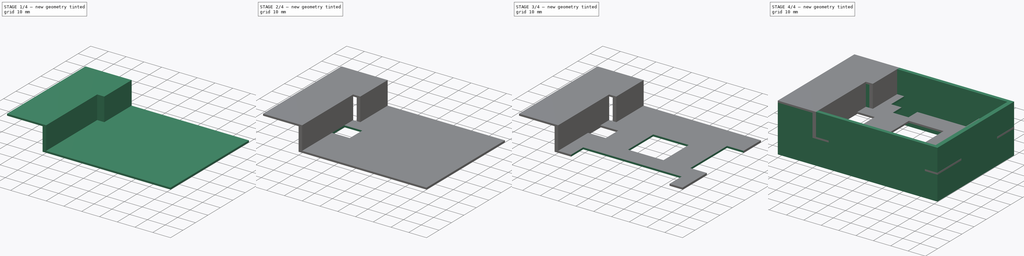
[diagram: build sequence overview — one tinted view per stage of 4, left to right]
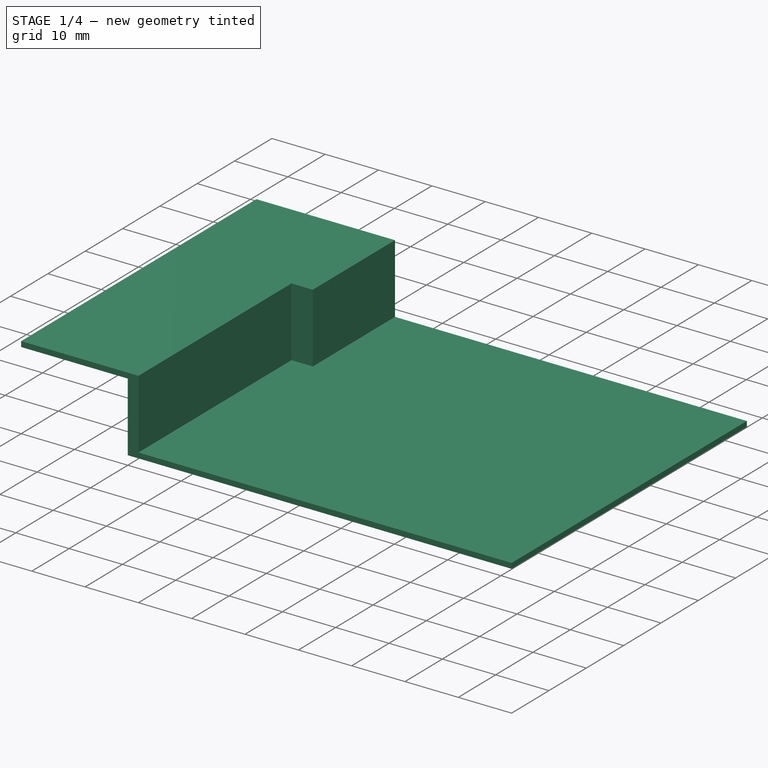
[diagram: stage 1 of 4 — iso view after this stage's code; geometry added in this stage tinted green]
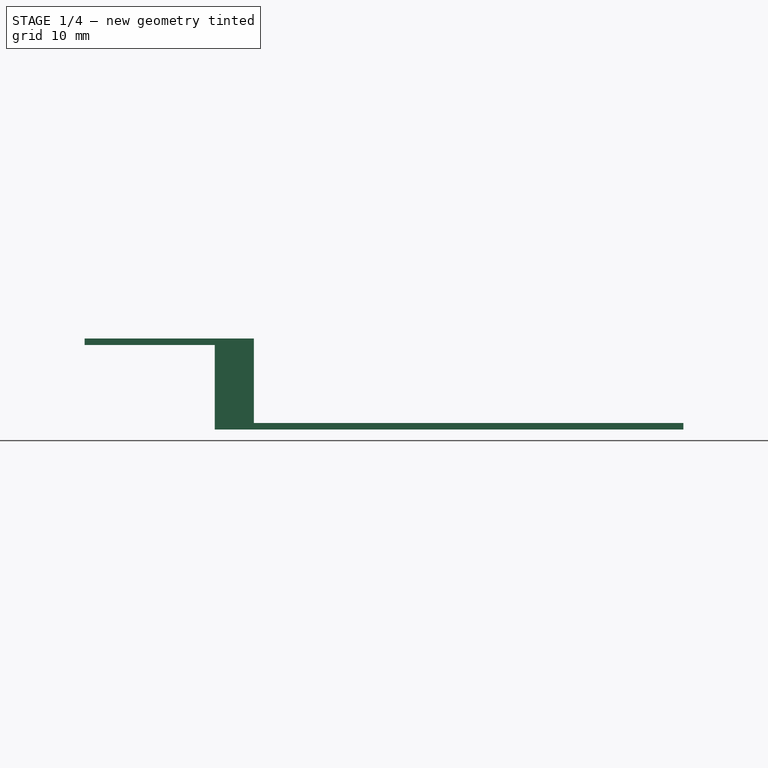
[diagram: stage 1 of 4 — front view after this stage's code; geometry added in this stage tinted green]
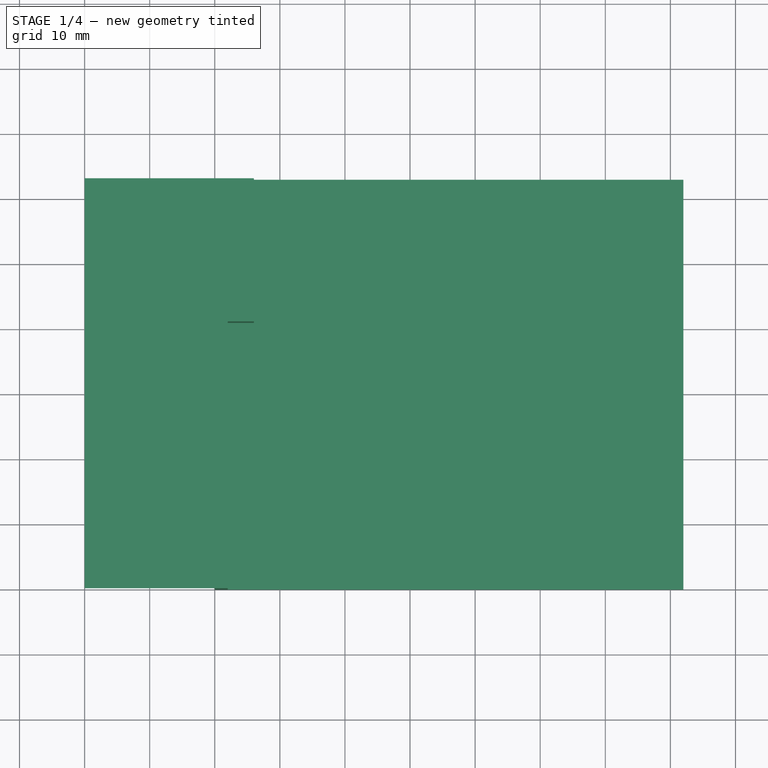
[diagram: stage 1 of 4 — top view after this stage's code; geometry added in this stage tinted green]
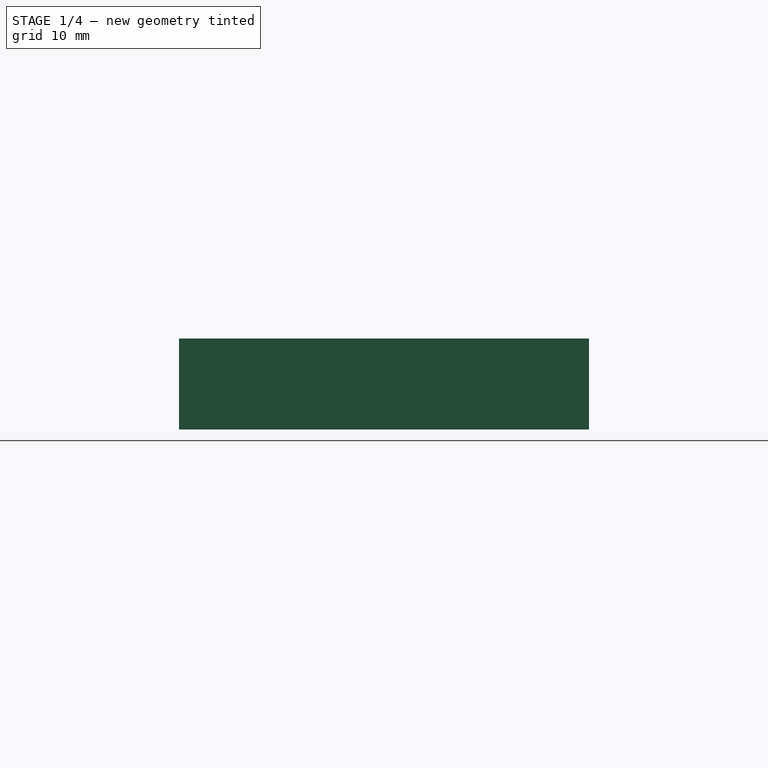
[diagram: stage 1 of 4 — right view after this stage's code; geometry added in this stage tinted green]
FCSTD DOCUMENT  (FreeCAD 0.17RUnknown)
Label: raspberrypi
License: All rights reserved
LicenseURL: http://en.wikipedia.org/wiki/All_rights_reserved
objects: Sketcher::SketchObject×9, PartDesign::Pocket×6, PartDesign::Plane×4, PartDesign::Pad×3, PartDesign::Body×1
note: 32 computed .brp shape members not serialized (recipe doc carries the construction recipe); baked Part::Feature solids carry a one-line shape summary decoded from their .brp

FEATURE [Sketcher::SketchObject] Sketch
  Placement = pos=(0,0,0) rot=(1,0,0;1.5708rad)
  sketch-geometry (11):
    g0: LineSegment StartX=0 StartY=22 StartZ=0 EndX=20 EndY=22 EndZ=0
    g1: LineSegment StartX=20 StartY=22 StartZ=0 EndX=20 EndY=9 EndZ=0
    g2: LineSegment StartX=20 StartY=9 StartZ=0 EndX=92 EndY=9 EndZ=0
    g3: LineSegment StartX=0 StartY=22 StartZ=0 EndX=0 EndY=23 EndZ=0
    g4: LineSegment StartX=0 StartY=23 StartZ=0 EndX=22 EndY=23 EndZ=0
    g5: LineSegment StartX=22 StartY=23 StartZ=0 EndX=22 EndY=10 EndZ=0
    g6: LineSegment StartX=22 StartY=10 StartZ=0 EndX=92 EndY=10 EndZ=0
    g7: LineSegment StartX=92 StartY=10 StartZ=0 EndX=92 EndY=9 EndZ=0
    g8: LineSegment [constr] StartX=20 StartY=9 StartZ=0 EndX=20 EndY=0 EndZ=0
    g9: LineSegment [constr] StartX=22 StartY=10 StartZ=0 EndX=22 EndY=0 EndZ=0
    g10: LineSegment [constr] StartX=92 StartY=9 StartZ=0 EndX=92 EndY=0 EndZ=0
  constraints (33):
    c: Coincident(g0,g1)
    c: Coincident(g1,g2)
    c: Coincident(g0,g3)
    c: Coincident(g3,g4)
    c: Coincident(g4,g5)
    c: Coincident(g5,g6)
    c: Coincident(g6,g7)
    c: Coincident(g7,g2)
    c: Distance(g3,g0) = 1
    c: Parallel(g4,g0)
    c: Parallel(g1,g5)
    c: Parallel(g6,g2)
    c: Horizontal(g0)
    c: Horizontal(g2)
    c: Vertical(g1)
    c: Coincident(g8,g1)
    c: PointOnObject(g8,g-1)
    c: Vertical(g8)
    c: Coincident(g9,g5)
    c: PointOnObject(g9,g-1)
    c: Vertical(g9)
    c: Distance(g6,g2) = 1
    c: Parallel(g3,g5)
    c: Parallel(g7,g1)
    c: Distance(g4,g5) = 13
    c: Coincident(g10,g2)
    c: PointOnObject(g10,g-1)
    c: Vertical(g10)
    c: Distance(g8,g9) = 2
    c: PointOnObject(g0,g-2)
    c: Distance(g-1,g0) = 22
    c: Distance(g0,g0) = 20
    c: Distance(g9,g10) = 70
FEATURE [PartDesign::Pad] Pad
  Length = 63
  Length2 = 100
  Placement = pos=(0,0,0) rot=(1,0,0;1.5708rad)
  Profile = -> Sketch
  Reversed = true
  Type = 0
FEATURE [PartDesign::Plane] DatumPlane
  MapMode = 5
  Placement = pos=(22,0,0) rot=(0.707107,0,0.707107;3.14159rad)
  Support = -> [Pad]
FEATURE [Sketcher::SketchObject] Sketch001
  ExternalGeometry = -> [Pad]
  MapMode = 5
  Placement = pos=(22,0,0) rot=(0.707107,0,0.707107;3.14159rad)
  Support = -> [DatumPlane]
  sketch-geometry (3):
    g0: LineSegment StartX=23 StartY=-63 StartZ=0 EndX=10 EndY=-63 EndZ=0
    g1: LineSegment StartX=10 StartY=-39 StartZ=0 EndX=23 EndY=-39 EndZ=0
    g2: LineSegment StartX=23 StartY=-39 StartZ=0 EndX=23 EndY=-63 EndZ=0
  constraints (8):
    c: Coincident(g1,g2)
    c: Coincident(g2,g0)
    c: Horizontal(g0)
    c: Horizontal(g1)
    c: Vertical(g2)
    c: Coincident(g0,g-4)
    c: PointOnObject(g1,g-5)
    c: Distance(g2) = 24
FEATURE [PartDesign::Pad] Pad001
  BaseFeature = -> Pad
  Length = 4
  Length2 = 100
  Placement = pos=(0,0,0) rot=(1,0,0;1.5708rad)
  Profile = -> Sketch001
  Type = 0
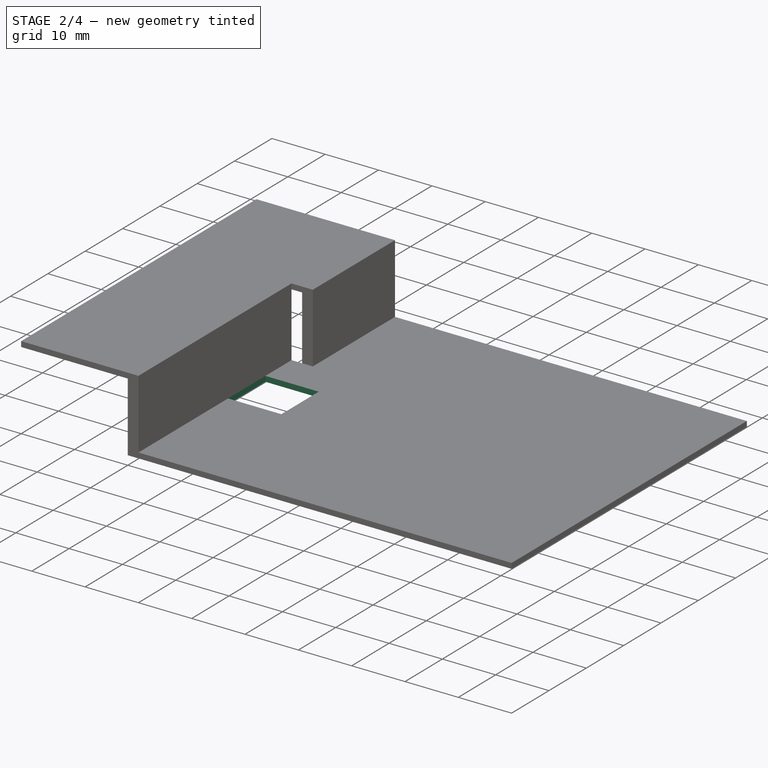
[diagram: stage 2 of 4 — iso view after this stage's code; geometry added in this stage tinted green]
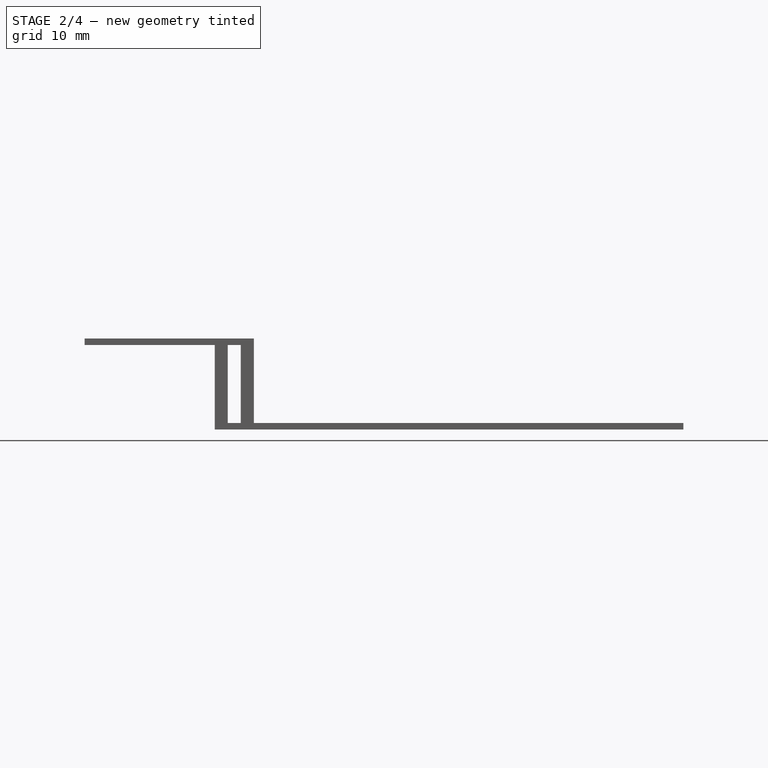
[diagram: stage 2 of 4 — front view after this stage's code; geometry added in this stage tinted green]
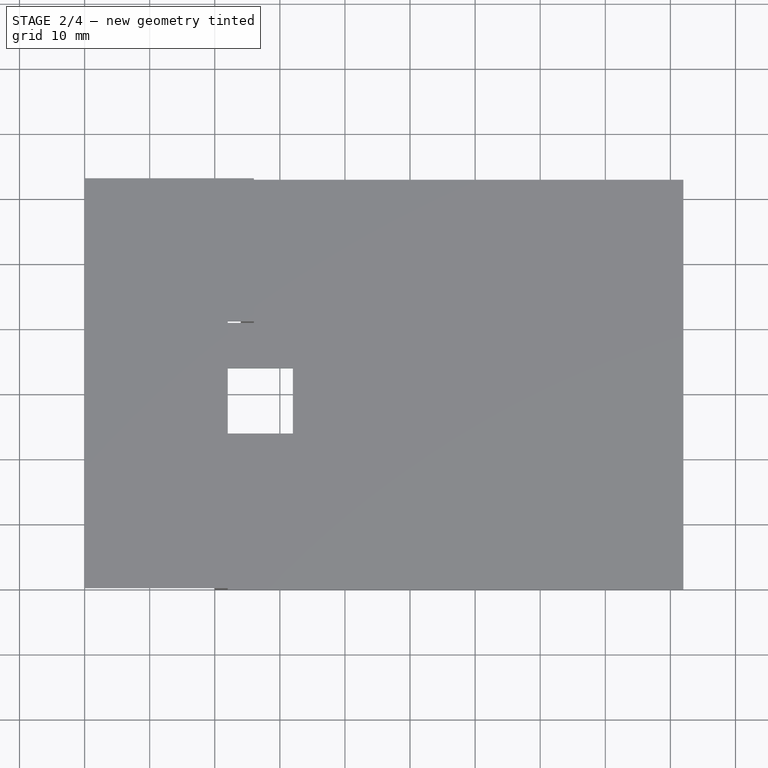
[diagram: stage 2 of 4 — top view after this stage's code; geometry added in this stage tinted green]
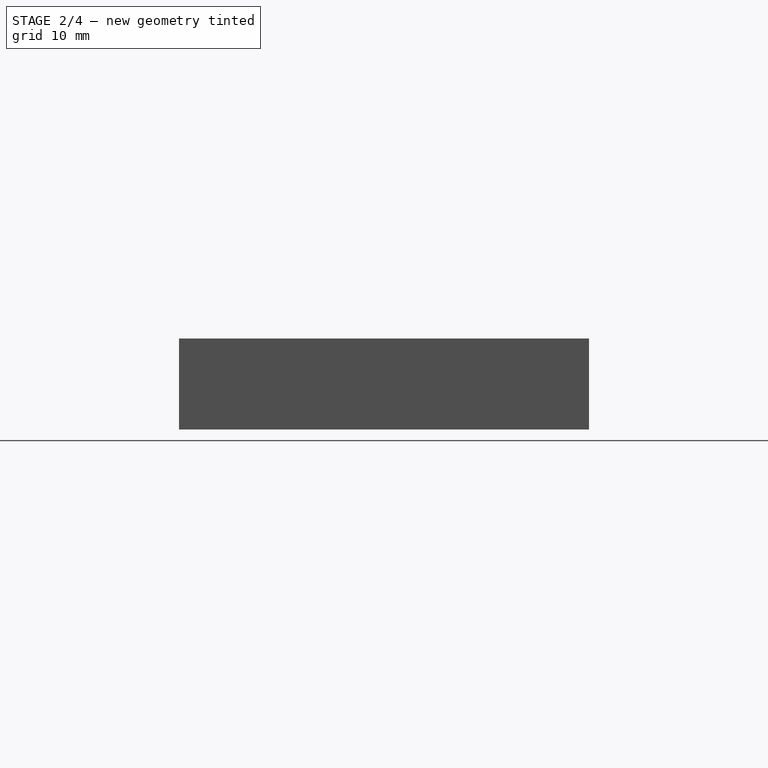
[diagram: stage 2 of 4 — right view after this stage's code; geometry added in this stage tinted green]
FEATURE [PartDesign::Plane] DatumPlane001
  MapMode = 5
  Placement = pos=(20,0,0) rot=(0.707107,0,-0.707107;3.14159rad)
  Support = -> [Pad001]
FEATURE [Sketcher::SketchObject] Sketch002
  ExternalGeometry = -> [Pad001]
  MapMode = 5
  Placement = pos=(20,0,0) rot=(0.707107,0,-0.707107;3.14159rad)
  Support = -> [DatumPlane001]
  sketch-geometry (4):
    g0: LineSegment StartX=-9 StartY=-63 StartZ=0 EndX=-22 EndY=-63 EndZ=0
    g1: LineSegment StartX=-22 StartY=-63 StartZ=0 EndX=-22 EndY=-41 EndZ=0
    g2: LineSegment StartX=-22 StartY=-41 StartZ=0 EndX=-9 EndY=-41 EndZ=0
    g3: LineSegment StartX=-9 StartY=-41 StartZ=0 EndX=-9 EndY=-63 EndZ=0
  constraints (11):
    c: Coincident(g0,g1)
    c: Coincident(g1,g2)
    c: Coincident(g2,g3)
    c: Coincident(g3,g0)
    c: Horizontal(g0)
    c: Horizontal(g2)
    c: Vertical(g1)
    c: Vertical(g3)
    c: Coincident(g0,g-6)
    c: PointOnObject(g1,g-5)
    c: Distance(g3) = 22
FEATURE [PartDesign::Pocket] Pocket
  BaseFeature = -> Pad001
  Length = 4
  Length2 = 100
  Placement = pos=(0,0,0) rot=(1,0,0;1.5708rad)
  Profile = -> Sketch002
  Type = 0
FEATURE [PartDesign::Plane] DatumPlane002
  MapMode = 5
  Placement = pos=(0,0,10) rot=(0,0,1;3.14159rad)
  Support = -> [Pocket]
FEATURE [Sketcher::SketchObject] Sketch003  label="hole1"
  ExternalGeometry = -> [Pocket]
  MapMode = 5
  Placement = pos=(0,0,10) rot=(0,0,1;3.14159rad)
  Support = -> [DatumPlane002]
  sketch-geometry (5):
    g0: LineSegment StartX=-32 StartY=-24 StartZ=0 EndX=-22 EndY=-24 EndZ=0
    g1: LineSegment StartX=-22 StartY=-24 StartZ=0 EndX=-22 EndY=-34 EndZ=0
    g2: LineSegment StartX=-22 StartY=-34 StartZ=0 EndX=-32 EndY=-34 EndZ=0
    g3: LineSegment StartX=-32 StartY=-34 StartZ=0 EndX=-32 EndY=-24 EndZ=0
    g4: LineSegment [constr] StartX=-32 StartY=-34 StartZ=0 EndX=-32 EndY=-41 EndZ=0
  constraints (15):
    c: Coincident(g0,g1)
    c: Coincident(g1,g2)
    c: Coincident(g2,g3)
    c: Coincident(g3,g0)
    c: Horizontal(g0)
    c: Horizontal(g2)
    c: Vertical(g1)
    c: Vertical(g3)
    c: Equal(g0,g3)
    c: Coincident(g4,g2)
    c: PointOnObject(g4,g-7)
    c: Parallel(g4,g3)
    c: PointOnObject(g0,g-8)
    c: Distance(g0) = 10
    c: Distance(g4) = 7
FEATURE [Sketcher::SketchObject] Sketch004  label="hole2"
  MapMode = 5
  Placement = pos=(0,0,10) rot=(0,0,1;3.14159rad)
  Support = -> [DatumPlane002]
  sketch-geometry (4):
    g0: LineSegment StartX=-84.6832 StartY=0 StartZ=0 EndX=-29.3019 EndY=0 EndZ=0
    g1: LineSegment StartX=-29.3019 StartY=0 StartZ=0 EndX=-29.3019 EndY=-9.71902 EndZ=0
    g2: LineSegment StartX=-29.3019 StartY=-9.71902 StartZ=0 EndX=-84.6832 EndY=-9.71902 EndZ=0
    g3: LineSegment StartX=-84.6832 StartY=-9.71902 StartZ=0 EndX=-84.6832 EndY=0 EndZ=0
  constraints (9):
    c: Coincident(g0,g1)
    c: Coincident(g1,g2)
    c: Coincident(g2,g3)
    c: Coincident(g3,g0)
    c: Horizontal(g0)
    c: Horizontal(g2)
    c: Vertical(g1)
    c: Vertical(g3)
    c: PointOnObject(g0,g-1)
FEATURE [PartDesign::Pocket] Pocket001
  BaseFeature = -> Pocket
  Length = 5
  Length2 = 100
  Placement = pos=(0,0,0) rot=(1,0,0;1.5708rad)
  Profile = -> Sketch003
  Type = 0
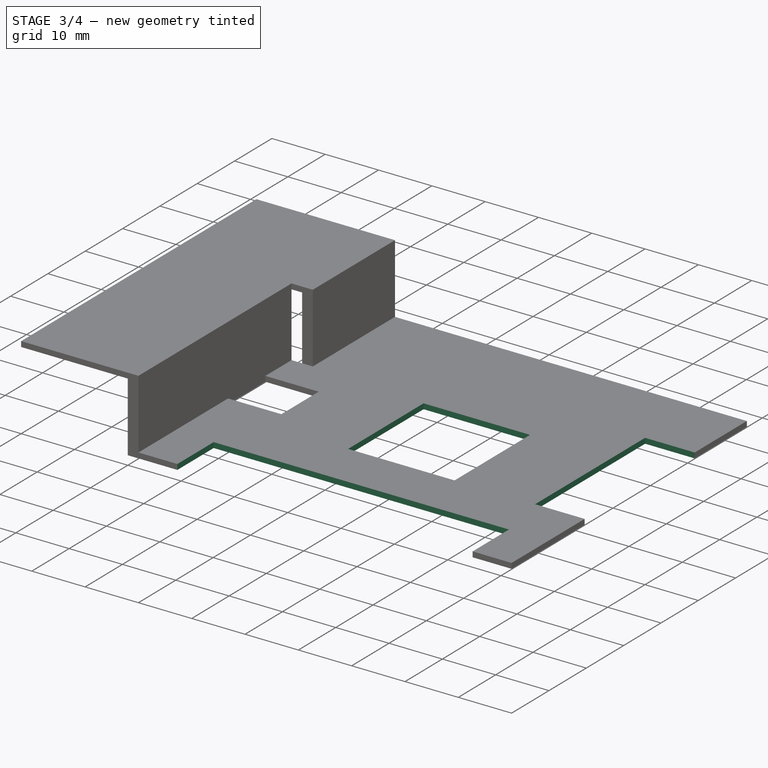
[diagram: stage 3 of 4 — iso view after this stage's code; geometry added in this stage tinted green]
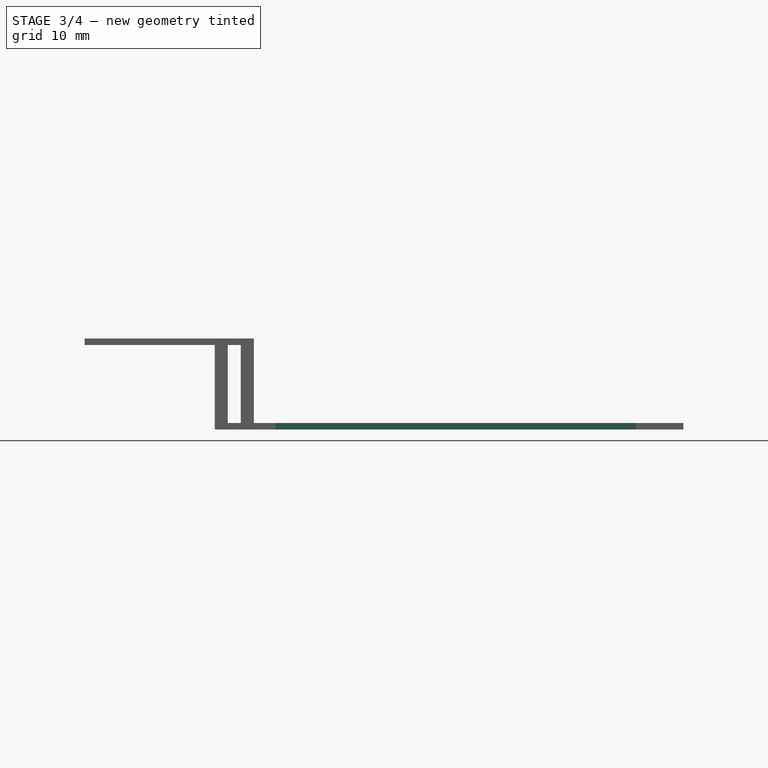
[diagram: stage 3 of 4 — front view after this stage's code; geometry added in this stage tinted green]
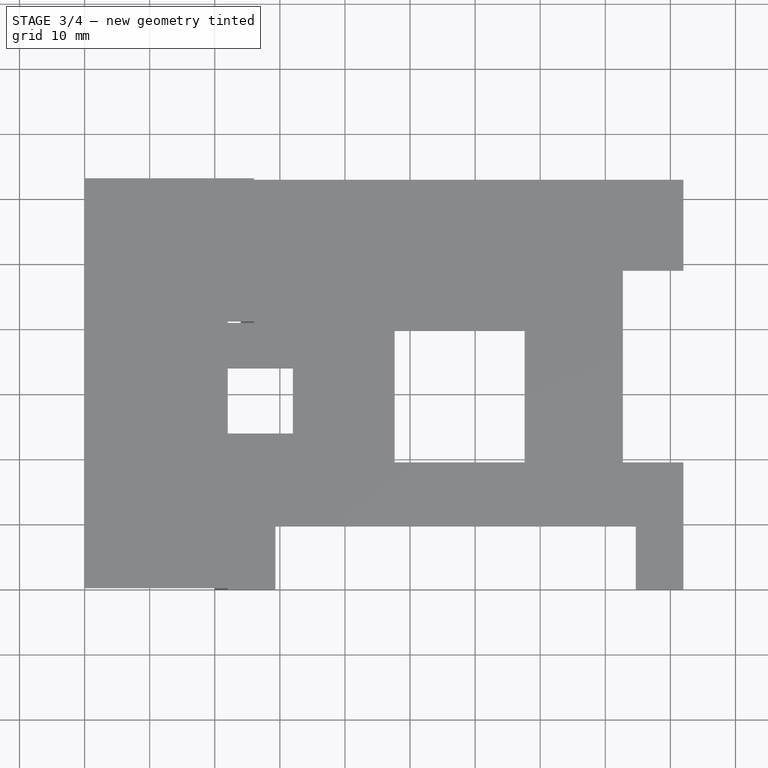
[diagram: stage 3 of 4 — top view after this stage's code; geometry added in this stage tinted green]
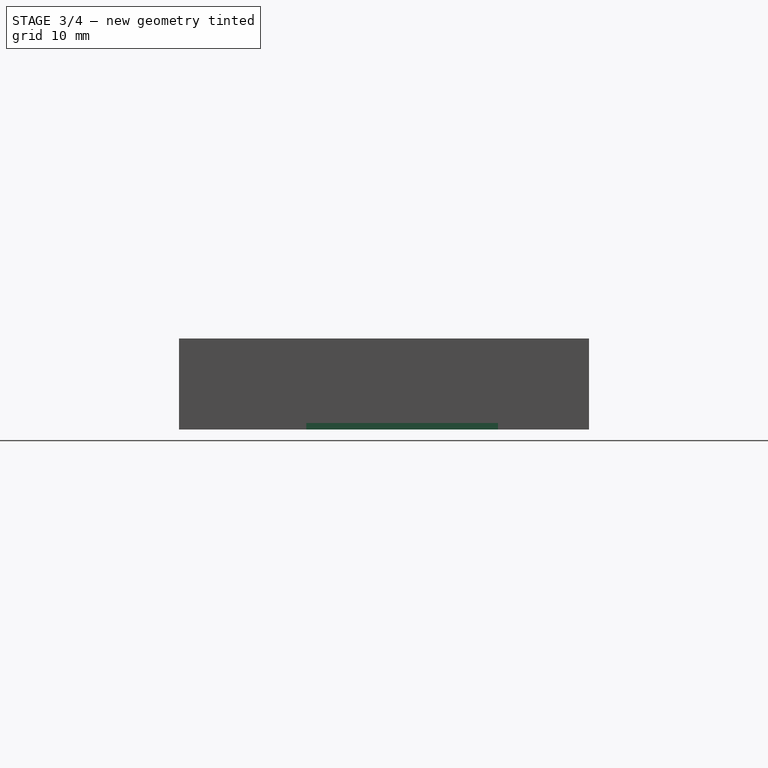
[diagram: stage 3 of 4 — right view after this stage's code; geometry added in this stage tinted green]
FEATURE [PartDesign::Pocket] Pocket002
  BaseFeature = -> Pocket001
  Length = 5
  Length2 = 100
  Placement = pos=(0,0,0) rot=(1,0,0;1.5708rad)
  Profile = -> Sketch004
  Type = 0
FEATURE [Sketcher::SketchObject] Sketch005
  MapMode = 5
  Placement = pos=(0,0,10) rot=(0,0,1;3.14159rad)
  Support = -> [DatumPlane002]
  sketch-geometry (4):
    g0: LineSegment StartX=-67.6064 StartY=-19.5549 StartZ=0 EndX=-47.6368 EndY=-19.5549 EndZ=0
    g1: LineSegment StartX=-47.6368 StartY=-19.5549 StartZ=0 EndX=-47.6368 EndY=-39.768 EndZ=0
    g2: LineSegment StartX=-47.6368 StartY=-39.768 StartZ=0 EndX=-67.6064 EndY=-39.768 EndZ=0
    g3: LineSegment StartX=-67.6064 StartY=-39.768 StartZ=0 EndX=-67.6064 EndY=-19.5549 EndZ=0
  constraints (8):
    c: Coincident(g0,g1)
    c: Coincident(g1,g2)
    c: Coincident(g2,g3)
    c: Coincident(g3,g0)
    c: Horizontal(g0)
    c: Horizontal(g2)
    c: Vertical(g1)
    c: Vertical(g3)
FEATURE [PartDesign::Pocket] Pocket003
  BaseFeature = -> Pocket002
  Length = 5
  Length2 = 100
  Placement = pos=(0,0,0) rot=(1,0,0;1.5708rad)
  Profile = -> Sketch005
  Type = 0
FEATURE [Sketcher::SketchObject] Sketch006
  MapMode = 5
  Placement = pos=(0,0,10) rot=(0,0,1;3.14159rad)
  Support = -> [DatumPlane002]
  sketch-geometry (4):
    g0: LineSegment StartX=-82.7054 StartY=-19.5549 StartZ=0 EndX=-94.6384 EndY=-19.5549 EndZ=0
    g1: LineSegment StartX=-94.6384 StartY=-19.5549 StartZ=0 EndX=-94.6384 EndY=-49.0222 EndZ=0
    g2: LineSegment StartX=-94.6384 StartY=-49.0222 StartZ=0 EndX=-82.7054 EndY=-49.0222 EndZ=0
    g3: LineSegment StartX=-82.7054 StartY=-49.0222 StartZ=0 EndX=-82.7054 EndY=-19.5549 EndZ=0
  constraints (8):
    c: Coincident(g0,g1)
    c: Coincident(g1,g2)
    c: Coincident(g2,g3)
    c: Coincident(g3,g0)
    c: Horizontal(g0)
    c: Horizontal(g2)
    c: Vertical(g1)
    c: Vertical(g3)
FEATURE [PartDesign::Pocket] Pocket004
  BaseFeature = -> Pocket003
  Length = 5
  Length2 = 100
  Placement = pos=(0,0,0) rot=(1,0,0;1.5708rad)
  Profile = -> Sketch006
  Type = 0
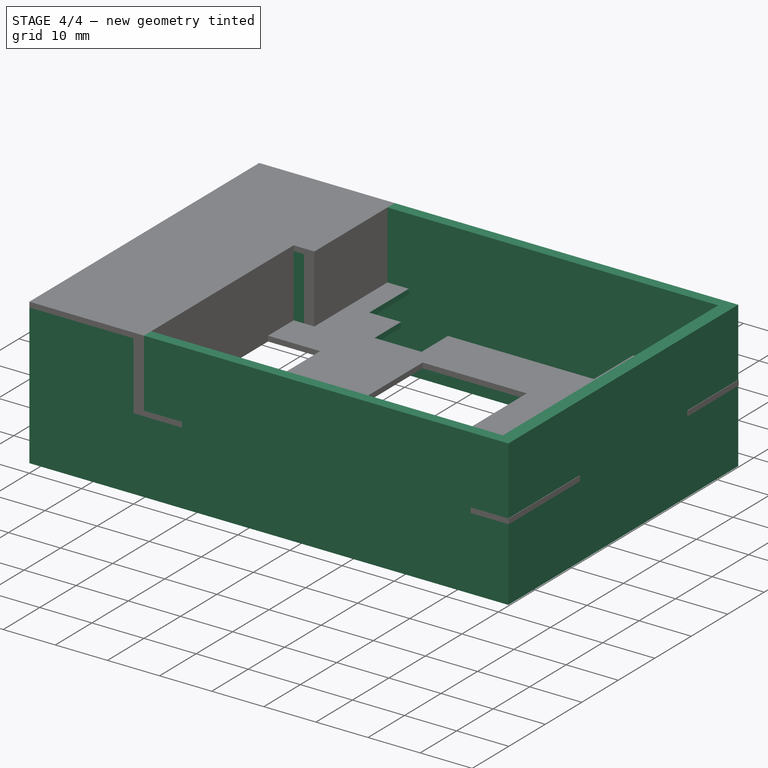
[diagram: stage 4 of 4 — iso view after this stage's code; geometry added in this stage tinted green]
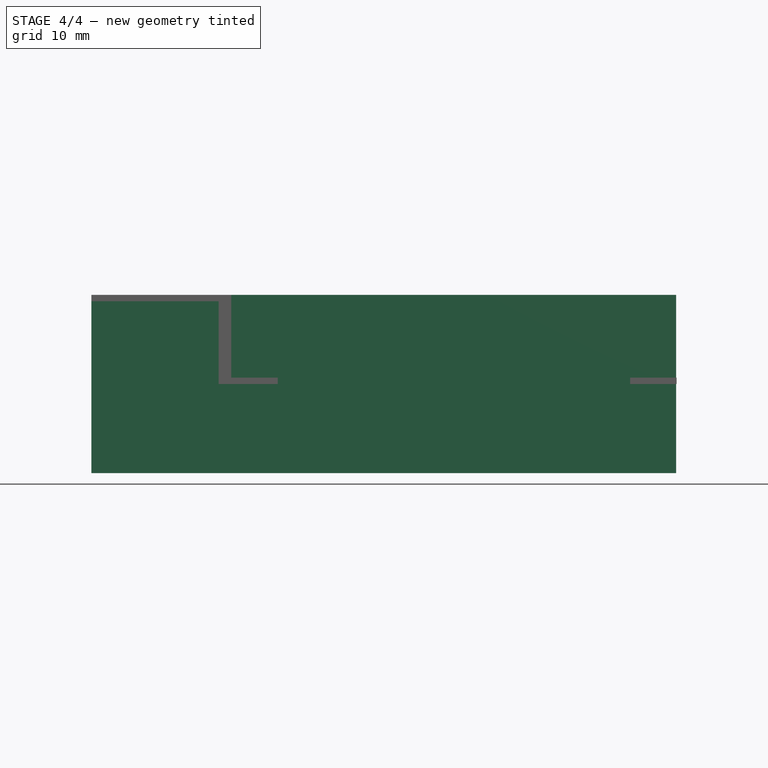
[diagram: stage 4 of 4 — front view after this stage's code; geometry added in this stage tinted green]
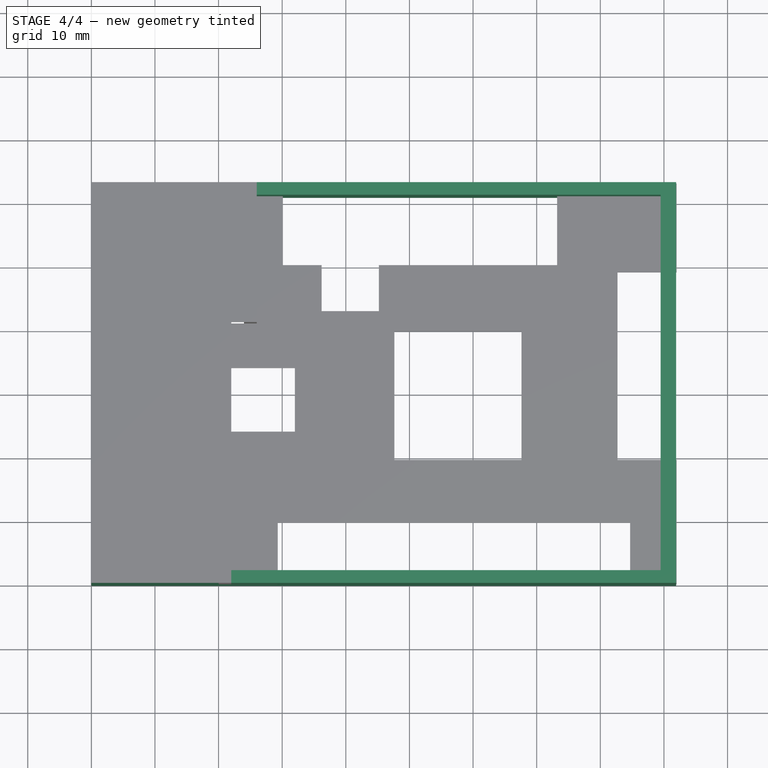
[diagram: stage 4 of 4 — top view after this stage's code; geometry added in this stage tinted green]
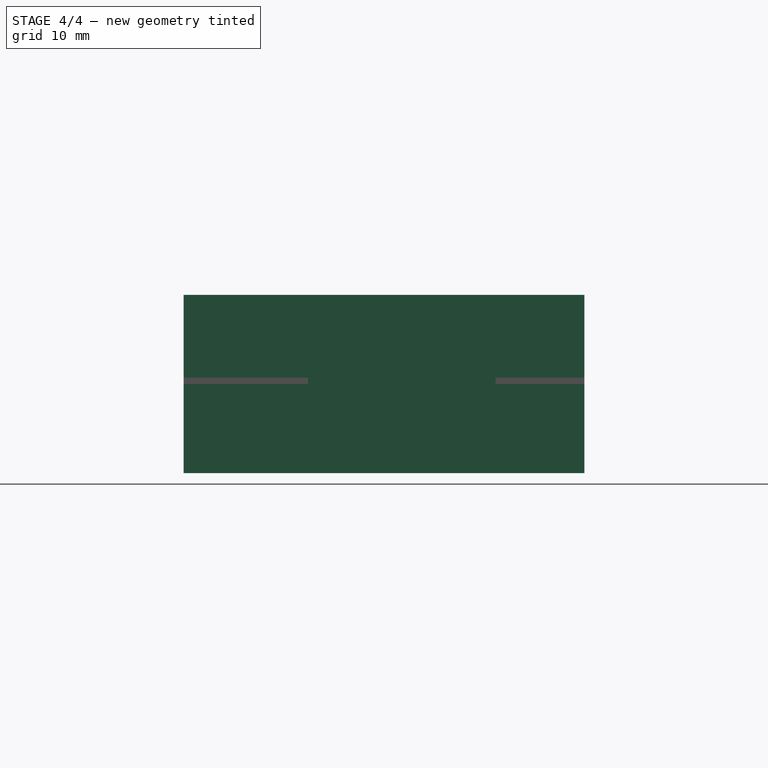
[diagram: stage 4 of 4 — right view after this stage's code; geometry added in this stage tinted green]
FEATURE [Sketcher::SketchObject] Sketch007
  MapMode = 5
  Placement = pos=(0,0,10) rot=(0,0,1;3.14159rad)
  Support = -> [DatumPlane002]
  sketch-geometry (8):
    g0: LineSegment StartX=-30.1025 StartY=-50.1729 StartZ=0 EndX=-30.1025 EndY=-65.0953 EndZ=0
    g1: LineSegment StartX=-30.1025 StartY=-65.0953 StartZ=0 EndX=-73.2076 EndY=-65.0953 EndZ=0
    g2: LineSegment StartX=-73.2076 StartY=-65.0953 StartZ=0 EndX=-73.2076 EndY=-50.1729 EndZ=0
    g3: LineSegment StartX=-36.1908 StartY=-42.9339 StartZ=0 EndX=-45.2015 EndY=-42.9339 EndZ=0
    g4: LineSegment StartX=-45.2015 StartY=-42.9339 StartZ=0 EndX=-45.2015 EndY=-50.1729 EndZ=0
    g5: LineSegment StartX=-36.1908 StartY=-50.1729 StartZ=0 EndX=-36.1908 EndY=-42.9339 EndZ=0
    g6: LineSegment StartX=-73.2076 StartY=-50.1729 StartZ=0 EndX=-45.2015 EndY=-50.1729 EndZ=0
    g7: LineSegment StartX=-36.1908 StartY=-50.1729 StartZ=0 EndX=-30.1025 EndY=-50.1729 EndZ=0
  constraints (16):
    c: Coincident(g0,g1)
    c: Coincident(g1,g2)
    c: Horizontal(g1)
    c: Vertical(g0)
    c: Vertical(g2)
    c: Coincident(g3,g4)
    c: Coincident(g5,g3)
    c: Horizontal(g3)
    c: Vertical(g4)
    c: Vertical(g5)
    c: Coincident(g6,g2)
    c: Coincident(g6,g4)
    c: Horizontal(g6)
    c: Coincident(g7,g5)
    c: Coincident(g7,g0)
    c: Horizontal(g7)
FEATURE [PartDesign::Pocket] Pocket005
  BaseFeature = -> Pocket004
  Length = 5
  Length2 = 100
  Placement = pos=(0,0,0) rot=(1,0,0;1.5708rad)
  Profile = -> Sketch007
  Type = 0
FEATURE [PartDesign::Plane] DatumPlane003
  MapMode = 5
  Placement = pos=(0,0,23) rot=(0,0,1;3.14159rad)
  Support = -> [Pocket005]
FEATURE [Sketcher::SketchObject] Sketch008
  ExternalGeometry = -> [Pocket005]
  MapMode = 5
  Placement = pos=(0,0,23) rot=(0,0,1;3.14159rad)
  Support = -> [DatumPlane003]
  sketch-geometry (13):
    g0: LineSegment StartX=0 StartY=0 StartZ=0 EndX=-91.9195 EndY=0 EndZ=0
    g1: LineSegment StartX=-91.9195 StartY=0 StartZ=0 EndX=-91.9195 EndY=-63 EndZ=0
    g2: LineSegment StartX=-91.9195 StartY=-63 StartZ=0 EndX=0 EndY=-63 EndZ=0
    g3: LineSegment StartX=0 StartY=-63 StartZ=0 EndX=0 EndY=0 EndZ=0
    g4: LineSegment StartX=-1.99999 StartY=-2 StartZ=0 EndX=-89.4788 EndY=-2 EndZ=0
    g5: LineSegment StartX=-89.4788 StartY=-2 StartZ=0 EndX=-89.4788 EndY=-61 EndZ=0
    g6: LineSegment StartX=-89.4788 StartY=-61 StartZ=0 EndX=-1.99999 EndY=-61 EndZ=0
    g7: LineSegment StartX=-1.99999 StartY=-61 StartZ=0 EndX=-1.99999 EndY=-2 EndZ=0
    g8: LineSegment [constr] StartX=-1.99999 StartY=-2 StartZ=0 EndX=0 EndY=-2.00637 EndZ=0
    g9: LineSegment [constr] StartX=-1.99999 StartY=-61 StartZ=0 EndX=0 EndY=-60.9936 EndZ=0
    g10: LineSegment [constr] StartX=0 StartY=-60.9936 StartZ=0 EndX=-1.99999 EndY=-61 EndZ=0
    g11: LineSegment [constr] StartX=-1.99999 StartY=-61 StartZ=0 EndX=-1.99999 EndY=-63 EndZ=0
    g12: LineSegment [constr] StartX=-1.99999 StartY=-2 StartZ=0 EndX=-1.99999 EndY=0 EndZ=0
  constraints (34):
    c: Coincident(g0,g1)
    c: Coincident(g1,g2)
    c: Coincident(g2,g3)
    c: Coincident(g3,g0)
    c: Horizontal(g0)
    c: Horizontal(g2)
    c: Vertical(g1)
    c: Vertical(g3)
    c: Coincident(g0,g-1)
    c: Coincident(g4,g5)
    c: Coincident(g5,g6)
    c: Coincident(g6,g7)
    c: Coincident(g7,g4)
    c: Horizontal(g4)
    c: Horizontal(g6)
    c: Vertical(g5)
    c: Vertical(g7)
    c: Coincident(g4,g8)
    c: PointOnObject(g8,g3)
    c: Coincident(g6,g9)
    c: PointOnObject(g9,g3)
    c: Coincident(g9,g10)
    c: Coincident(g10,g9)
    c: Coincident(g6,g11)
    c: PointOnObject(g11,g2)
    c: Vertical(g11)
    c: Coincident(g4,g12)
    c: PointOnObject(g12,g0)
    c: Vertical(g12)
    c: Distance(g8) = 2
    c: Distance(g12) = 2
    c: Distance(g9) = 2
    c: Distance(g11) = 2
    c: Coincident(g2,g-4)
FEATURE [PartDesign::Pad] Pad002
  BaseFeature = -> Pocket005
  Length = 28
  Length2 = 100
  Placement = pos=(0,0,0) rot=(1,0,0;1.5708rad)
  Profile = -> Sketch008
  Reversed = true
  Type = 0
FEATURE [PartDesign::Body] Body
  Group = -> [Sketch,Pad,DatumPlane,Sketch001,Pad001,DatumPlane001,Sketch002,Pocket,DatumPlane002,Sketch003,Sketch004,Pocket001,Pocket002,Sketch005,Pocket003,Sketch006,Pocket004,Sketch007,Pocket005,DatumPlane003,Sketch008,Pad002]
  Origin = -> Origin
  Tip = -> Pad002
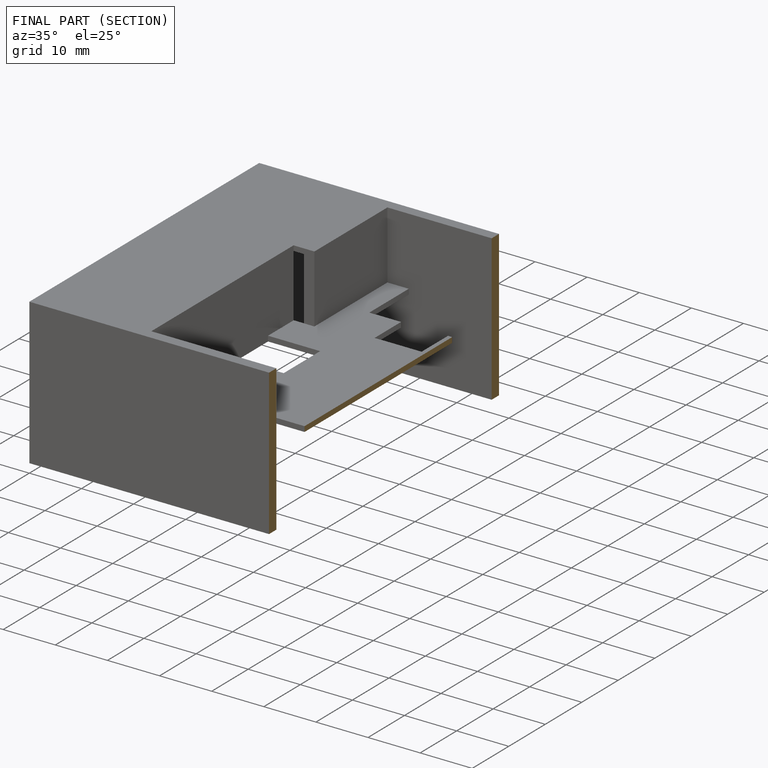
[diagram: finished part — half-section view (interior)]
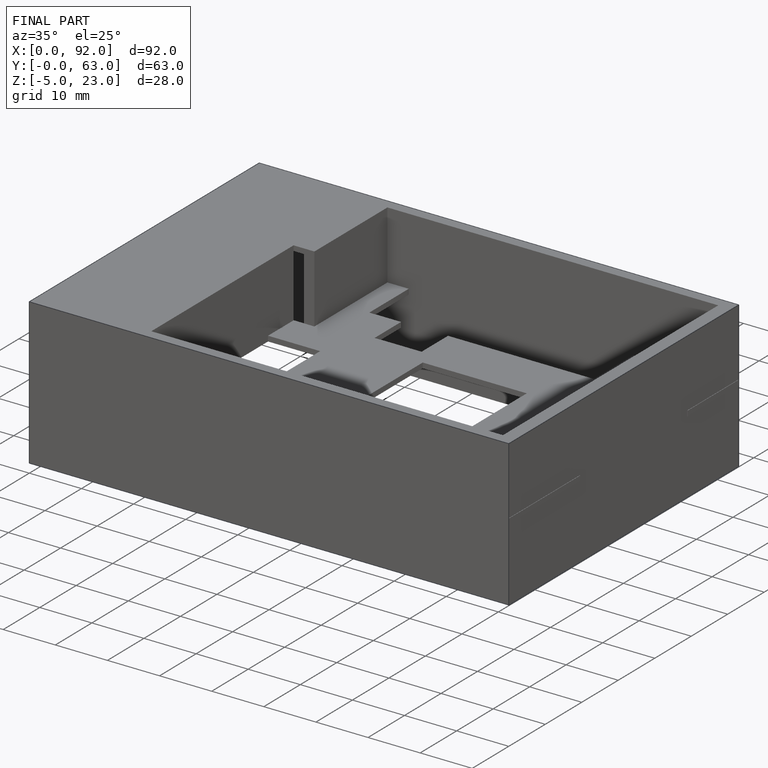
[diagram: finished part — iso view with bounding-box wireframe]
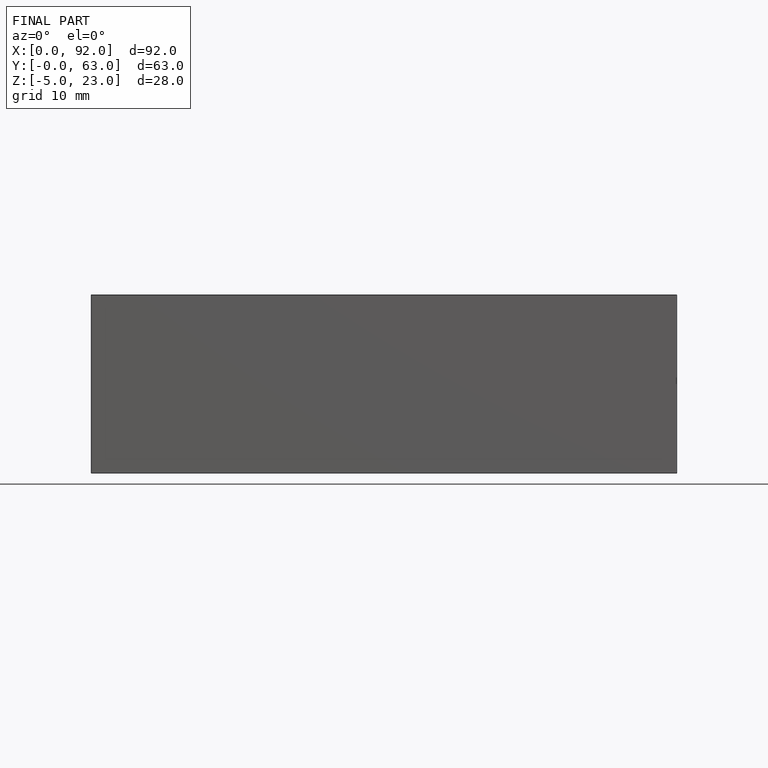
[diagram: finished part — front view with bounding-box wireframe]
